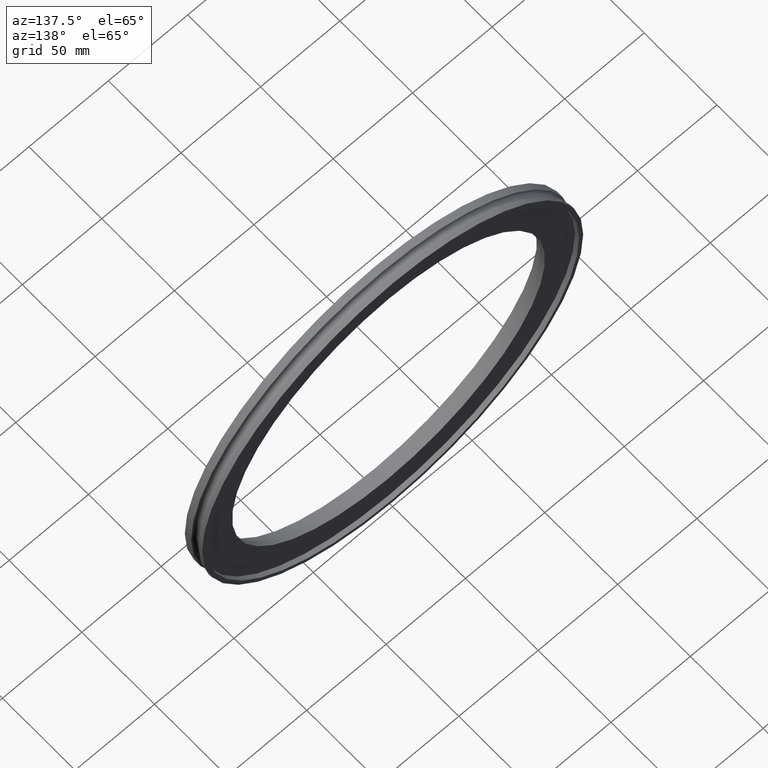
[diagram: clean part render]
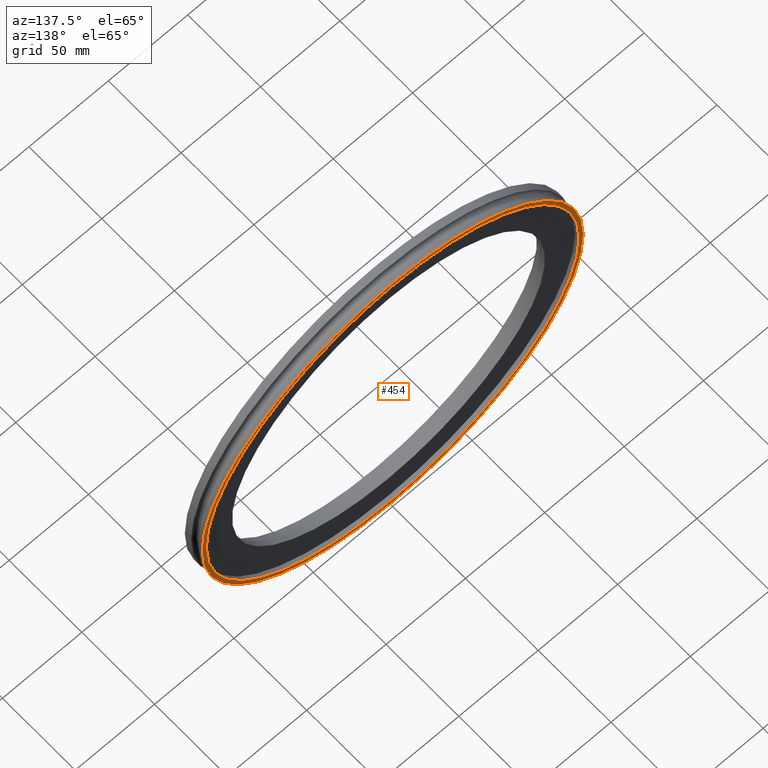
[diagram: same view with one face highlighted and labeled with its STEP entity id]
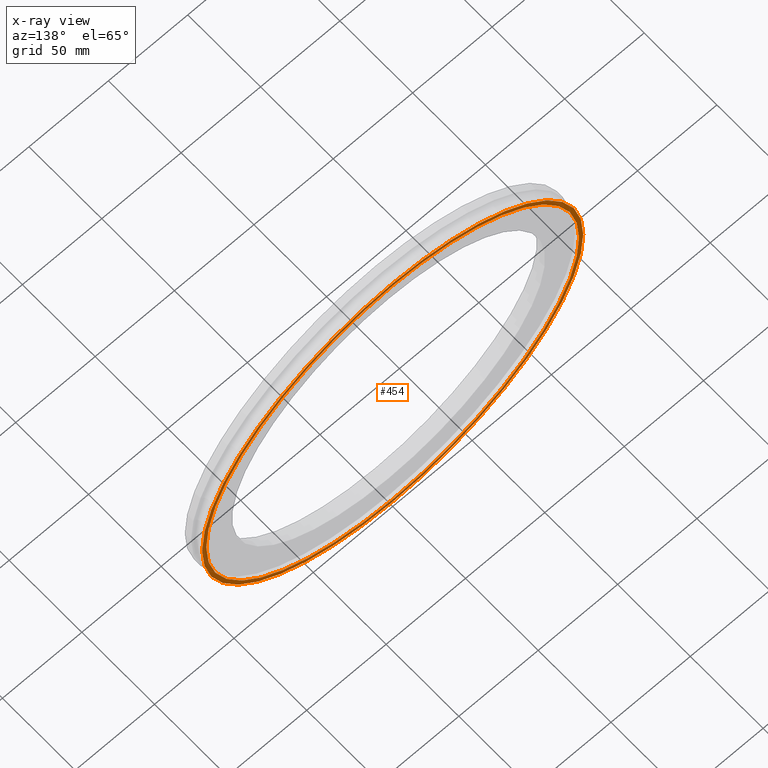
[diagram: x-ray of the same camera — body ghosted, the highlighted face saturated]
A machine part, auxiliary view. The second image highlights one B-rep face of the part: STEP entity #454.
The next image is the same camera in x-ray: the body ghosted, the highlighted face saturated — about 0% of this face is hidden behind the body in this view.
In plain terms, the highlighted planar face has unit normal (0, -1, 0).
Its self-contained STEP definition (entity closure, byte-faithful):
#2 = DIRECTION ( 'NONE',  ( -0.000000000000000000, 1.000000000000000000, -0.000000000000000000 ) ) ;
#6 = AXIS2_PLACEMENT_3D ( 'NONE', #371, #2, #582 ) ;
#9 = VERTEX_POINT ( 'NONE', #177 ) ;
#12 = FACE_BOUND ( 'NONE', #592, .T. ) ;
#13 = DIRECTION ( 'NONE',  ( 0.000000000000000000, 0.000000000000000000, 1.000000000000000000 ) ) ;
#16 = PLANE ( 'NONE',  #294 ) ;
#21 = DIRECTION ( 'NONE',  ( 0.000000000000000000, 0.000000000000000000, 1.000000000000000000 ) ) ;
#33 = EDGE_CURVE ( 'NONE', #9, #495, #641, .T. ) ;
#60 = ORIENTED_EDGE ( 'NONE', *, *, #477, .F. ) ;
#75 = CARTESIAN_POINT ( 'NONE',  ( 4.621999999999999886, 0.000000000000000000, 0.000000000000000000 ) ) ;
#77 = CIRCLE ( 'NONE', #605, 4.621999999999999886 ) ;
#85 = ORIENTED_EDGE ( 'NONE', *, *, #537, .F. ) ;
#129 = DIRECTION ( 'NONE',  ( -0.000000000000000000, 1.000000000000000000, -0.000000000000000000 ) ) ;
#137 = AXIS2_PLACEMENT_3D ( 'NONE', #297, #129, #21 ) ;
#176 = ORIENTED_EDGE ( 'NONE', *, *, #306, .T. ) ;
#177 = CARTESIAN_POINT ( 'NONE',  ( 0.000000000000000000, 0.000000000000000000, 4.724999999999999645 ) ) ;
#235 = CARTESIAN_POINT ( 'NONE',  ( 0.000000000000000000, 0.000000000000000000, 0.000000000000000000 ) ) ;
#283 = DIRECTION ( 'NONE',  ( 0.000000000000000000, -1.000000000000000000, 0.000000000000000000 ) ) ;
#293 = CARTESIAN_POINT ( 'NONE',  ( 5.786456125971243047E-16, 0.000000000000000000, -4.724999999999999645 ) ) ;
#294 = AXIS2_PLACEMENT_3D ( 'NONE', #75, #283, #547 ) ;
#297 = CARTESIAN_POINT ( 'NONE',  ( 0.000000000000000000, 0.000000000000000000, 0.000000000000000000 ) ) ;
#306 = EDGE_CURVE ( 'NONE', #495, #9, #462, .T. ) ;
#312 = ORIENTED_EDGE ( 'NONE', *, *, #33, .T. ) ;
#321 = VERTEX_POINT ( 'NONE', #332 ) ;
#332 = CARTESIAN_POINT ( 'NONE',  ( 0.000000000000000000, 0.000000000000000000, 4.621999999999999886 ) ) ;
#337 = AXIS2_PLACEMENT_3D ( 'NONE', #235, #546, #13 ) ;
#340 = DIRECTION ( 'NONE',  ( 0.000000000000000000, 0.000000000000000000, 1.000000000000000000 ) ) ;
#349 = EDGE_LOOP ( 'NONE', ( #312, #176 ) ) ;
#361 = CARTESIAN_POINT ( 'NONE',  ( 5.660317505659066563E-16, 0.000000000000000000, -4.621999999999999886 ) ) ;
#371 = CARTESIAN_POINT ( 'NONE',  ( 0.000000000000000000, 0.000000000000000000, 0.000000000000000000 ) ) ;
#434 = CIRCLE ( 'NONE', #137, 4.621999999999999886 ) ;
#454 = ADVANCED_FACE ( 'NONE', ( #12, #502 ), #16, .F. ) ;
#462 = CIRCLE ( 'NONE', #6, 4.724999999999999645 ) ;
#477 = EDGE_CURVE ( 'NONE', #618, #321, #77, .T. ) ;
#490 = CARTESIAN_POINT ( 'NONE',  ( 0.000000000000000000, 0.000000000000000000, 0.000000000000000000 ) ) ;
#494 = DIRECTION ( 'NONE',  ( -0.000000000000000000, 1.000000000000000000, -0.000000000000000000 ) ) ;
#495 = VERTEX_POINT ( 'NONE', #293 ) ;
#502 = FACE_OUTER_BOUND ( 'NONE', #349, .T. ) ;
#537 = EDGE_CURVE ( 'NONE', #321, #618, #434, .T. ) ;
#546 = DIRECTION ( 'NONE',  ( -0.000000000000000000, 1.000000000000000000, -0.000000000000000000 ) ) ;
#547 = DIRECTION ( 'NONE',  ( 0.000000000000000000, -0.000000000000000000, -1.000000000000000000 ) ) ;
#582 = DIRECTION ( 'NONE',  ( 0.000000000000000000, 0.000000000000000000, 1.000000000000000000 ) ) ;
#592 = EDGE_LOOP ( 'NONE', ( #85, #60 ) ) ;
#605 = AXIS2_PLACEMENT_3D ( 'NONE', #490, #494, #340 ) ;
#618 = VERTEX_POINT ( 'NONE', #361 ) ;
#641 = CIRCLE ( 'NONE', #337, 4.724999999999999645 ) ;